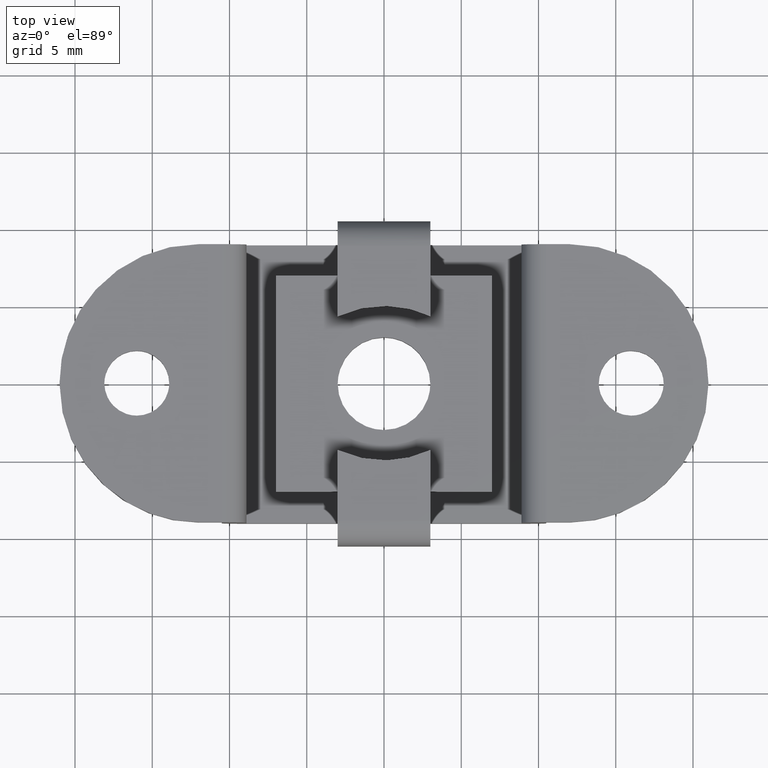
[diagram: clean part render]
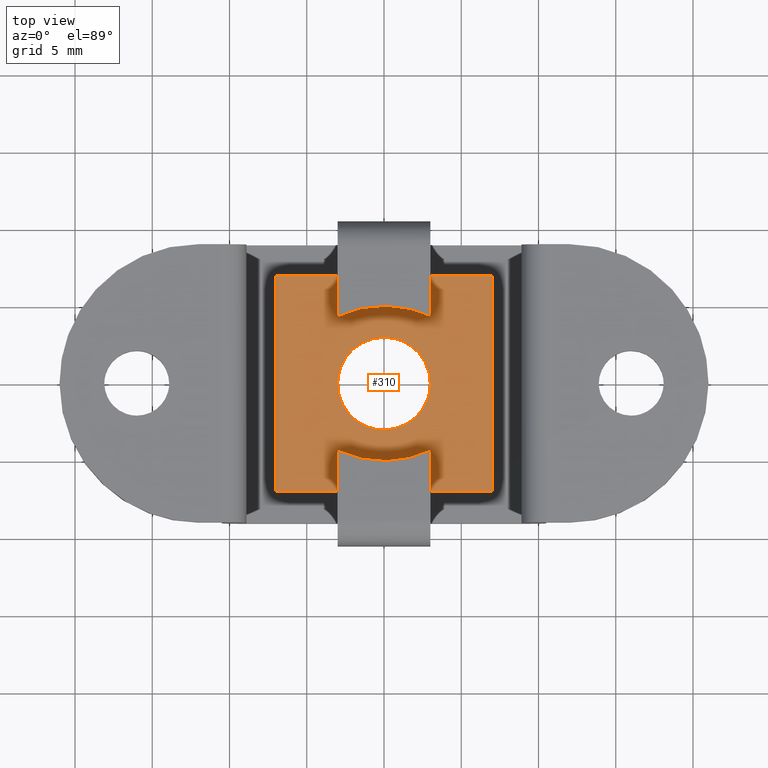
[diagram: same view with one face highlighted and labeled with its STEP entity id]
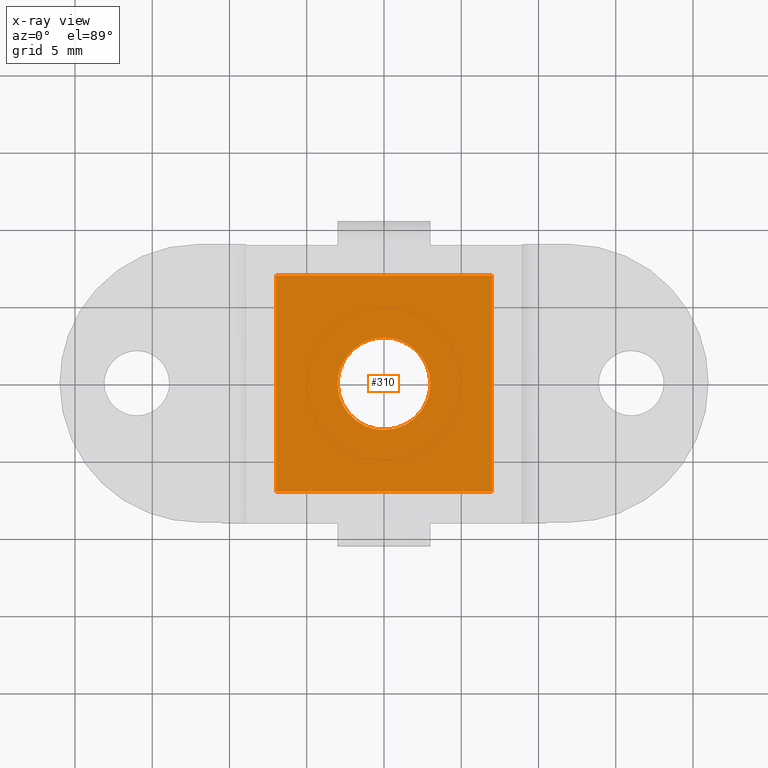
[diagram: x-ray of the same camera — body ghosted, the highlighted face saturated]
A machine part, top view. The second image highlights one B-rep face of the part: STEP entity #310.
The next image is the same camera in x-ray: the body ghosted, the highlighted face saturated — about 0% of this face is hidden behind the body in this view.
In plain terms, the highlighted face is a freeform B-spline surface patch.
Its self-contained STEP definition (entity closure, byte-faithful):
#67=CARTESIAN_POINT('',(2.026770673738997,-2.211832104469940,4.400000000000000));
#68=VERTEX_POINT('',#67);
#74=CARTESIAN_POINT('',(3.0,0.0,4.400000000000000));
#75=VERTEX_POINT('',#74);
#76=CARTESIAN_POINT('',(2.026770673738997,-2.211832104469940,4.400000000000000));
#77=CARTESIAN_POINT('',(2.189156933363123,-2.063085198861876,4.400000000000000));
#78=CARTESIAN_POINT('',(2.420838792355911,-1.798257086006472,4.400000000000002));
#79=CARTESIAN_POINT('',(2.682873065308152,-1.365092180028348,4.399999999999992));
#80=CARTESIAN_POINT('',(2.845380228362336,-0.982398828095320,4.400000000000031));
#81=CARTESIAN_POINT('',(2.968418679573983,-0.518135548678806,4.399999999999942));
#82=CARTESIAN_POINT('',(3.000027866195699,-0.194306504653893,4.400000000000072));
#83=CARTESIAN_POINT('',(3.0,0.0,4.400000000000000));
#84=B_SPLINE_CURVE_WITH_KNOTS('',3,(#76,#77,#78,#79,#80,#81,#82,#83),.UNSPECIFIED.,.F.,.U.,(4,1,1,1,1,4),(9.363800E-009,0.660639622569622,1.049254698645388,1.515582155250587,1.904195438151279,2.487111640527097),.UNSPECIFIED.);
#85=EDGE_CURVE('',#68,#75,#84,.T.);
#87=CARTESIAN_POINT('',(-0.000000416446229,2.999999999999971,4.400000000000000));
#88=VERTEX_POINT('',#87);
#89=CARTESIAN_POINT('',(3.0,0.0,4.400000000000000));
#90=CARTESIAN_POINT('',(3.000052158852878,0.233170579982338,4.400000000000013));
#91=CARTESIAN_POINT('',(2.962610217956538,0.552211795406007,4.399999999999976));
#92=CARTESIAN_POINT('',(2.818622982441321,1.060389758396632,4.400000000000018));
#93=CARTESIAN_POINT('',(2.620922717434376,1.499108978183200,4.399999999999983));
#94=CARTESIAN_POINT('',(2.241578102507129,2.030850284471219,4.399999999999989));
#95=CARTESIAN_POINT('',(1.762183622571043,2.460024266492848,4.400000000000008));
#96=CARTESIAN_POINT('',(1.211195263224248,2.763216431509638,4.400000000000008));
#97=CARTESIAN_POINT('',(0.638114445852250,2.952540369618199,4.399999999999984));
#98=CARTESIAN_POINT('',(0.233166958956253,3.000049257060000,4.399999999999995));
#99=CARTESIAN_POINT('',(-0.000000416446229,2.999999999999971,4.400000000000000));
#100=B_SPLINE_CURVE_WITH_KNOTS('',3,(#89,#90,#91,#92,#93,#94,#95,#96,#97,#98,#99),.UNSPECIFIED.,.F.,.U.,(4,1,1,1,1,1,1,1,4),(0.000000033856314,0.699497773477367,0.957207019893092,1.583080279433483,2.135320060540488,2.908443203026440,3.497497773849499,4.012924576036063,4.712418783343729),.UNSPECIFIED.);
#101=EDGE_CURVE('',#75,#88,#100,.T.);
#103=CARTESIAN_POINT('',(-2.026770673738987,2.211832104469929,4.400000000000000));
#104=VERTEX_POINT('',#103);
#105=CARTESIAN_POINT('',(-0.000000416446229,2.999999999999971,4.400000000000000));
#106=CARTESIAN_POINT('',(-0.208623711463178,3.000031432426040,4.400000000000001));
#107=CARTESIAN_POINT('',(-0.591082529063312,2.959939370994685,4.399999999999998));
#108=CARTESIAN_POINT('',(-1.147566025230278,2.790527886403072,4.400000000000010));
#109=CARTESIAN_POINT('',(-1.622508288926360,2.542656594097191,4.399999999999984));
#110=CARTESIAN_POINT('',(-1.907144956369305,2.321459555648221,4.400000000000021));
#111=CARTESIAN_POINT('',(-2.026770673738987,2.211832104469929,4.400000000000000));
#112=B_SPLINE_CURVE_WITH_KNOTS('',3,(#105,#106,#107,#108,#109,#110,#111),.UNSPECIFIED.,.F.,.U.,(4,1,1,1,4),(9.158697E-009,0.625868606685143,1.147418020893033,1.738522025511992,2.225306846812331),.UNSPECIFIED.);
#113=EDGE_CURVE('',#88,#104,#112,.T.);
#154=CARTESIAN_POINT('',(-3.0,0.0,4.400000000000000));
#155=VERTEX_POINT('',#154);
#156=CARTESIAN_POINT('',(-2.026770673738987,2.211832104469929,4.400000000000000));
#157=CARTESIAN_POINT('',(-2.170046648538725,2.080580698358743,4.400000000000004));
#158=CARTESIAN_POINT('',(-2.387444596869747,1.838500545908251,4.399999999999991));
#159=CARTESIAN_POINT('',(-2.660624319973099,1.412278584991795,4.400000000000016));
#160=CARTESIAN_POINT('',(-2.859703938051101,0.959880012675239,4.399999999999985));
#161=CARTESIAN_POINT('',(-2.976895514694452,0.466328997072855,4.400000000000023));
#162=CARTESIAN_POINT('',(-3.000003587010100,0.142488994971258,4.399999999999991));
#163=CARTESIAN_POINT('',(-3.0,0.0,4.400000000000000));
#164=B_SPLINE_CURVE_WITH_KNOTS('',3,(#156,#157,#158,#159,#160,#161,#162,#163),.UNSPECIFIED.,.F.,.U.,(4,1,1,1,1,4),(9.363851E-009,0.582916211744093,0.971529494636479,1.515582155250638,2.059641657035992,2.487111640527089),.UNSPECIFIED.);
#165=EDGE_CURVE('',#104,#155,#164,.T.);
#167=CARTESIAN_POINT('',(0.000000416446285,-2.999999999999971,4.400000000000000));
#168=VERTEX_POINT('',#167);
#169=CARTESIAN_POINT('',(-3.0,0.0,4.400000000000000));
#170=CARTESIAN_POINT('',(-3.000017091395970,-0.184077299907505,4.400000000000006));
#171=CARTESIAN_POINT('',(-2.963753868627087,-0.576771534518446,4.399999999999986));
#172=CARTESIAN_POINT('',(-2.795339544940274,-1.144584531822346,4.400000000000019));
#173=CARTESIAN_POINT('',(-2.533724431332368,-1.633947062793006,4.399999999999980));
#174=CARTESIAN_POINT('',(-2.177933087143338,-2.089909746249239,4.399999999999996));
#175=CARTESIAN_POINT('',(-1.740560003064064,-2.471901463290291,4.400000000000049));
#176=CARTESIAN_POINT('',(-1.243605398196318,-2.745375193930700,4.399999999999963));
#177=CARTESIAN_POINT('',(-0.674903861061597,-2.944937062939844,4.400000000000066));
#178=CARTESIAN_POINT('',(-0.269992103119819,-3.000101957141215,4.399999999999968));
#179=CARTESIAN_POINT('',(0.000000416446285,-2.999999999999971,4.400000000000000));
#180=B_SPLINE_CURVE_WITH_KNOTS('',3,(#169,#170,#171,#172,#173,#174,#175,#176,#177,#178,#179),.UNSPECIFIED.,.F.,.U.,(4,1,1,1,1,1,1,1,4),(0.000000033855061,0.552232916832345,1.178104888022424,1.767159346954734,2.208958015174996,2.908443203025962,3.497497773849176,3.902477172519704,4.712418783343773),.UNSPECIFIED.);
#181=EDGE_CURVE('',#155,#168,#180,.T.);
#183=CARTESIAN_POINT('',(0.000000416446285,-2.999999999999971,4.400000000000000));
#184=CARTESIAN_POINT('',(0.278176101201113,-3.000101663462502,4.400000000000006));
#185=CARTESIAN_POINT('',(0.683766153872140,-2.943169048825919,4.399999999999996));
#186=CARTESIAN_POINT('',(1.198007219225610,-2.760114830364985,4.400000000000002));
#187=CARTESIAN_POINT('',(1.611244990425968,-2.547506571131279,4.400000000000004));
#188=CARTESIAN_POINT('',(1.881521271355346,-2.344966932586829,4.399999999999999));
#189=CARTESIAN_POINT('',(2.026770673738997,-2.211832104469940,4.400000000000000));
#190=B_SPLINE_CURVE_WITH_KNOTS('',3,(#183,#184,#185,#186,#187,#188,#189),.UNSPECIFIED.,.F.,.U.,(4,1,1,1,4),(9.158646E-009,0.834490285835833,1.216959595333890,1.634209409400344,2.225306846812281),.UNSPECIFIED.);
#191=EDGE_CURVE('',#168,#68,#190,.T.);
#267=CARTESIAN_POINT('',(-7.699299972865284,7.699299972865378,4.400000000000000));
#268=CARTESIAN_POINT('',(7.699300348374545,7.699299972865378,4.400000000000000));
#269=CARTESIAN_POINT('',(-7.699299972865284,-7.699300348374552,4.400000000000000));
#270=CARTESIAN_POINT('',(7.699300348374545,-7.699300348374552,4.400000000000000));
#271=B_SPLINE_SURFACE_WITH_KNOTS('',1,1,((#267,#269),(#268,#270)),.UNSPECIFIED.,.F.,.F.,.U.,(2,2),(2,2),(0.0,15.398600321239829),(0.0,15.398600321239931),.UNSPECIFIED.);
#272=CARTESIAN_POINT('',(-7.0,7.000000000000091,4.400000000000000));
#273=VERTEX_POINT('',#272);
#274=CARTESIAN_POINT('',(-7.0,-7.0,4.400000000000000));
#275=VERTEX_POINT('',#274);
#276=CARTESIAN_POINT('',(-7.0,7.000000000000091,4.400000000000000));
#277=CARTESIAN_POINT('',(-7.0,-7.0,4.400000000000000));
#278=QUASI_UNIFORM_CURVE('',1,(#276,#277),.UNSPECIFIED.,.F.,.U.);
#279=EDGE_CURVE('',#273,#275,#278,.T.);
#280=ORIENTED_EDGE('',*,*,#279,.T.);
#281=CARTESIAN_POINT('',(7.0,-7.0,4.400000000000000));
#282=VERTEX_POINT('',#281);
#283=CARTESIAN_POINT('',(-7.0,-7.0,4.400000000000000));
#284=CARTESIAN_POINT('',(7.0,-7.0,4.400000000000000));
#285=QUASI_UNIFORM_CURVE('',1,(#283,#284),.UNSPECIFIED.,.F.,.U.);
#286=EDGE_CURVE('',#275,#282,#285,.T.);
#287=ORIENTED_EDGE('',*,*,#286,.T.);
#288=CARTESIAN_POINT('',(7.0,7.000000000000091,4.400000000000000));
#289=VERTEX_POINT('',#288);
#290=CARTESIAN_POINT('',(7.0,-7.0,4.400000000000000));
#291=CARTESIAN_POINT('',(7.0,7.000000000000091,4.400000000000000));
#292=QUASI_UNIFORM_CURVE('',1,(#290,#291),.UNSPECIFIED.,.F.,.U.);
#293=EDGE_CURVE('',#282,#289,#292,.T.);
#294=ORIENTED_EDGE('',*,*,#293,.T.);
#295=CARTESIAN_POINT('',(7.0,7.000000000000091,4.400000000000000));
#296=CARTESIAN_POINT('',(-7.0,7.000000000000091,4.400000000000000));
#297=QUASI_UNIFORM_CURVE('',1,(#295,#296),.UNSPECIFIED.,.F.,.U.);
#298=EDGE_CURVE('',#289,#273,#297,.T.);
#299=ORIENTED_EDGE('',*,*,#298,.T.);
#300=EDGE_LOOP('',(#280,#287,#294,#299));
#301=FACE_OUTER_BOUND('',#300,.T.);
#302=ORIENTED_EDGE('',*,*,#181,.F.);
#303=ORIENTED_EDGE('',*,*,#165,.F.);
#304=ORIENTED_EDGE('',*,*,#113,.F.);
#305=ORIENTED_EDGE('',*,*,#101,.F.);
#306=ORIENTED_EDGE('',*,*,#85,.F.);
#307=ORIENTED_EDGE('',*,*,#191,.F.);
#308=EDGE_LOOP('',(#302,#303,#304,#305,#306,#307));
#309=FACE_BOUND('',#308,.T.);
#310=ADVANCED_FACE('',(#301,#309),#271,.F.);